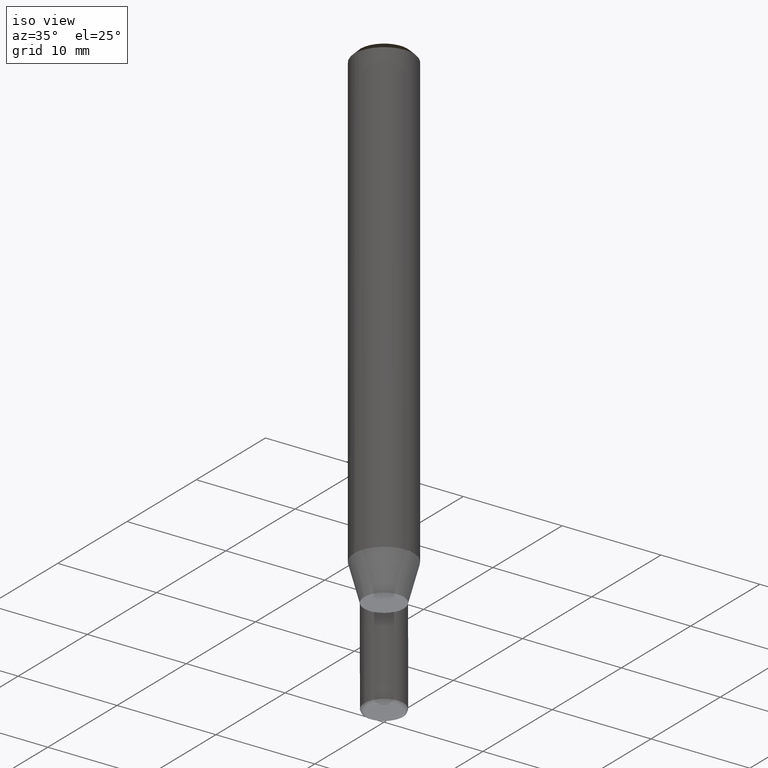
[diagram: clean part render]
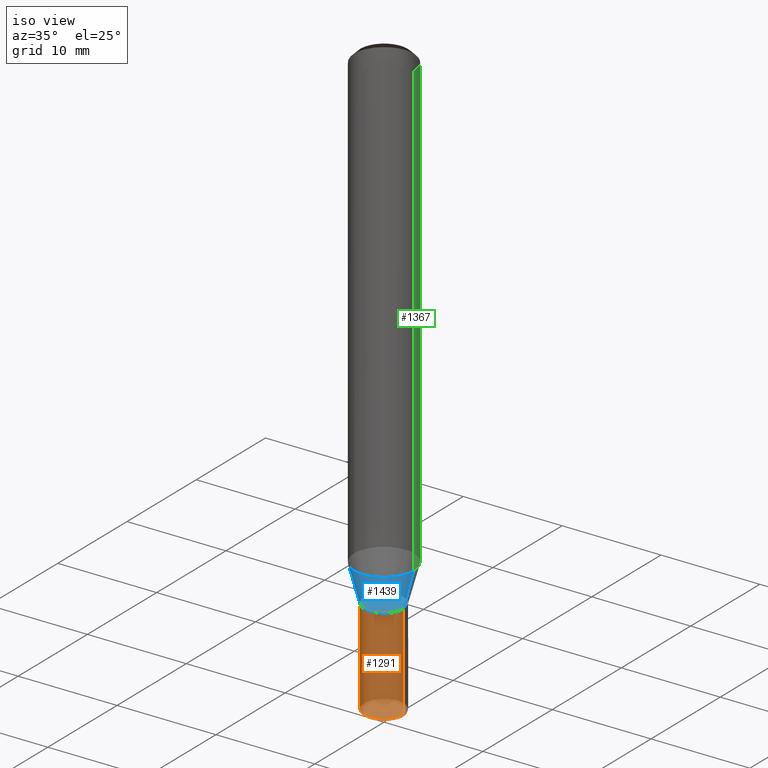
[diagram: same view with three faces highlighted in distinct colors, each labeled with its STEP entity id]
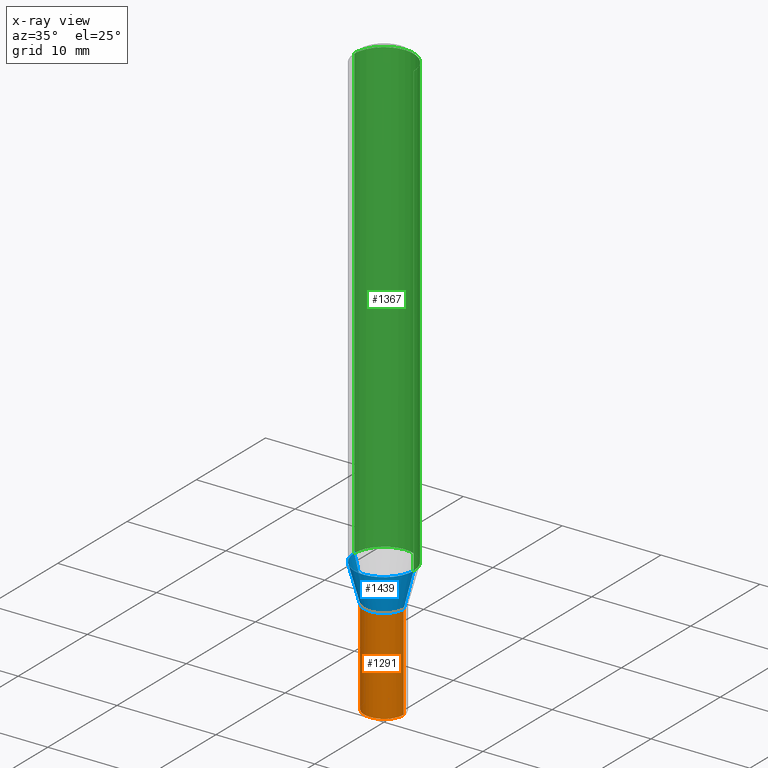
[diagram: x-ray of the same camera — body ghosted, the three highlighted faces saturated]
A machine part, iso view with three faces highlighted in distinct colors.
The next image is the same camera in x-ray (body ghosted, the three faces saturated) — at least one of them is partly hidden behind the body in this view.
Their STEP definitions:

[orange] entity #1291 — the highlighted face is a freeform B-spline surface patch.
#1101=CARTESIAN_POINT('',(2.0,0.0,-13.432050807569));
#1105=CARTESIAN_POINT('',(-2.0,0.0,-13.432050807569));
#1106=CARTESIAN_POINT('',(2.0,0.0,-3.732050807569));
#1110=CARTESIAN_POINT('',(-2.0,0.0,-3.732050807569));
#1124=CARTESIAN_POINT('',(-2.0,-2.0,-13.432050807569));
#1125=CARTESIAN_POINT('',(0.0,-2.0,-13.432050807569));
#1126=CARTESIAN_POINT('',(2.0,-2.0,-13.432050807569));
#1127=CARTESIAN_POINT('',(-2.0,-2.0,-3.732050807569));
#1128=CARTESIAN_POINT('',(0.0,-2.0,-3.732050807569));
#1129=CARTESIAN_POINT('',(2.0,-2.0,-3.732050807569));
#1272=(
BOUNDED_SURFACE()
B_SPLINE_SURFACE(1,2,(
(#1105,#1124,#1125,#1126,#1101),
(#1110,#1127,#1128,#1129,#1106)
), .UNSPECIFIED.,.F.,.F.,.F.)
B_SPLINE_SURFACE_WITH_KNOTS((2,2),(3,2,3),(
0.0,1.0),(
0.0,0.5,1.0), .UNSPECIFIED.)
GEOMETRIC_REPRESENTATION_ITEM()
RATIONAL_B_SPLINE_SURFACE(((1.0,0.707106781187,1.0,0.707106781187,1.0),
(1.0,0.707106781187,1.0,0.707106781187,1.0)
))
REPRESENTATION_ITEM('')
SURFACE()
);
#1273=(
BOUNDED_CURVE()
B_SPLINE_CURVE(1,(#1110,#1105),.UNSPECIFIED.,.F.,.F.)
B_SPLINE_CURVE_WITH_KNOTS((2,2),
(0.0,1.0),.UNSPECIFIED.)
CURVE()
GEOMETRIC_REPRESENTATION_ITEM()
RATIONAL_B_SPLINE_CURVE((1.0,1.0))
REPRESENTATION_ITEM('')
);
#1274=(
BOUNDED_CURVE()
B_SPLINE_CURVE(2,(#1105,#1124,#1125,#1126,#1101),.UNSPECIFIED.,.F.,.F.)
B_SPLINE_CURVE_WITH_KNOTS((3,2,3),
(0.0,0.5,1.0),.UNSPECIFIED.)
CURVE()
GEOMETRIC_REPRESENTATION_ITEM()
RATIONAL_B_SPLINE_CURVE((1.0,0.707106781187,1.0,0.707106781187,1.0))
REPRESENTATION_ITEM('')
);
#1275=(
BOUNDED_CURVE()
B_SPLINE_CURVE(1,(#1101,#1106),.UNSPECIFIED.,.F.,.F.)
B_SPLINE_CURVE_WITH_KNOTS((2,2),
(0.0,1.0),.UNSPECIFIED.)
CURVE()
GEOMETRIC_REPRESENTATION_ITEM()
RATIONAL_B_SPLINE_CURVE((1.0,1.0))
REPRESENTATION_ITEM('')
);
#1276=(
BOUNDED_CURVE()
B_SPLINE_CURVE(2,(#1106,#1129,#1128,#1127,#1110),.UNSPECIFIED.,.F.,.F.)
B_SPLINE_CURVE_WITH_KNOTS((3,2,3),
(0.0,0.5,1.0),.UNSPECIFIED.)
CURVE()
GEOMETRIC_REPRESENTATION_ITEM()
RATIONAL_B_SPLINE_CURVE((1.0,0.707106781187,1.0,0.707106781187,1.0))
REPRESENTATION_ITEM('')
);
#1277=VERTEX_POINT('',#1101);
#1278=VERTEX_POINT('',#1105);
#1279=VERTEX_POINT('',#1106);
#1280=VERTEX_POINT('',#1110);
#1281=EDGE_CURVE('',#1280,#1278,#1273,.T.);
#1282=EDGE_CURVE('',#1278,#1277,#1274,.T.);
#1283=EDGE_CURVE('',#1277,#1279,#1275,.T.);
#1284=EDGE_CURVE('',#1279,#1280,#1276,.T.);
#1285=ORIENTED_EDGE('',*,*,#1281,.T.);
#1286=ORIENTED_EDGE('',*,*,#1282,.T.);
#1287=ORIENTED_EDGE('',*,*,#1283,.T.);
#1288=ORIENTED_EDGE('',*,*,#1284,.T.);
#1289=EDGE_LOOP('',(#1285,#1286,#1287,#1288));
#1290=FACE_OUTER_BOUND('',#1289,.T.);
#1291=ADVANCED_FACE('',(#1290),#1272,.T.);

[blue] entity #1439 — the highlighted face is a freeform B-spline surface patch.
#1106=CARTESIAN_POINT('',(2.0,0.0,-3.732050807569));
#1110=CARTESIAN_POINT('',(-2.0,0.0,-3.732050807569));
#1127=CARTESIAN_POINT('',(-2.0,-2.0,-3.732050807569));
#1128=CARTESIAN_POINT('',(0.0,-2.0,-3.732050807569));
#1129=CARTESIAN_POINT('',(2.0,-2.0,-3.732050807569));
#1130=CARTESIAN_POINT('',(3.0,0.0,0.0));
#1134=CARTESIAN_POINT('',(-3.0,0.0,0.0));
#1146=CARTESIAN_POINT('',(-3.0,-3.0,0.0));
#1147=CARTESIAN_POINT('',(0.0,-3.0,0.0));
#1148=CARTESIAN_POINT('',(3.0,-3.0,0.0));
#1420=(
BOUNDED_SURFACE()
B_SPLINE_SURFACE(1,2,(
(#1110,#1127,#1128,#1129,#1106),
(#1134,#1146,#1147,#1148,#1130)
), .UNSPECIFIED.,.F.,.F.,.F.)
B_SPLINE_SURFACE_WITH_KNOTS((2,2),(3,2,3),(
0.0,1.0),(
0.0,0.5,1.0), .UNSPECIFIED.)
GEOMETRIC_REPRESENTATION_ITEM()
RATIONAL_B_SPLINE_SURFACE(((1.0,0.707106781187,1.0,0.707106781187,1.0),
(1.0,0.707106781187,1.0,0.707106781187,1.0)
))
REPRESENTATION_ITEM('')
SURFACE()
);
#1421=(
BOUNDED_CURVE()
B_SPLINE_CURVE(1,(#1134,#1110),.UNSPECIFIED.,.F.,.F.)
B_SPLINE_CURVE_WITH_KNOTS((2,2),
(0.0,1.0),.UNSPECIFIED.)
CURVE()
GEOMETRIC_REPRESENTATION_ITEM()
RATIONAL_B_SPLINE_CURVE((1.0,1.0))
REPRESENTATION_ITEM('')
);
#1422=(
BOUNDED_CURVE()
B_SPLINE_CURVE(2,(#1110,#1127,#1128,#1129,#1106),.UNSPECIFIED.,.F.,.F.)
B_SPLINE_CURVE_WITH_KNOTS((3,2,3),
(0.0,0.5,1.0),.UNSPECIFIED.)
CURVE()
GEOMETRIC_REPRESENTATION_ITEM()
RATIONAL_B_SPLINE_CURVE((1.0,0.707106781187,1.0,0.707106781187,1.0))
REPRESENTATION_ITEM('')
);
#1423=(
BOUNDED_CURVE()
B_SPLINE_CURVE(1,(#1106,#1130),.UNSPECIFIED.,.F.,.F.)
B_SPLINE_CURVE_WITH_KNOTS((2,2),
(0.0,1.0),.UNSPECIFIED.)
CURVE()
GEOMETRIC_REPRESENTATION_ITEM()
RATIONAL_B_SPLINE_CURVE((1.0,1.0))
REPRESENTATION_ITEM('')
);
#1424=(
BOUNDED_CURVE()
B_SPLINE_CURVE(2,(#1130,#1148,#1147,#1146,#1134),.UNSPECIFIED.,.F.,.F.)
B_SPLINE_CURVE_WITH_KNOTS((3,2,3),
(0.0,0.5,1.0),.UNSPECIFIED.)
CURVE()
GEOMETRIC_REPRESENTATION_ITEM()
RATIONAL_B_SPLINE_CURVE((1.0,0.707106781187,1.0,0.707106781187,1.0))
REPRESENTATION_ITEM('')
);
#1425=VERTEX_POINT('',#1106);
#1426=VERTEX_POINT('',#1110);
#1427=VERTEX_POINT('',#1130);
#1428=VERTEX_POINT('',#1134);
#1429=EDGE_CURVE('',#1428,#1426,#1421,.T.);
#1430=EDGE_CURVE('',#1426,#1425,#1422,.T.);
#1431=EDGE_CURVE('',#1425,#1427,#1423,.T.);
#1432=EDGE_CURVE('',#1427,#1428,#1424,.T.);
#1433=ORIENTED_EDGE('',*,*,#1429,.T.);
#1434=ORIENTED_EDGE('',*,*,#1430,.T.);
#1435=ORIENTED_EDGE('',*,*,#1431,.T.);
#1436=ORIENTED_EDGE('',*,*,#1432,.T.);
#1437=EDGE_LOOP('',(#1433,#1434,#1435,#1436));
#1438=FACE_OUTER_BOUND('',#1437,.T.);
#1439=ADVANCED_FACE('',(#1438),#1420,.T.);

[green] entity #1367 — the highlighted face is a freeform B-spline surface patch.
#1130=CARTESIAN_POINT('',(3.0,0.0,0.0));
#1131=CARTESIAN_POINT('',(3.0,3.0,0.0));
#1132=CARTESIAN_POINT('',(0.0,3.0,0.0));
#1133=CARTESIAN_POINT('',(-3.0,3.0,0.0));
#1134=CARTESIAN_POINT('',(-3.0,0.0,0.0));
#1135=CARTESIAN_POINT('',(3.0,0.0,45.667949192431));
#1136=CARTESIAN_POINT('',(3.0,3.0,45.667949192431));
#1137=CARTESIAN_POINT('',(0.0,3.0,45.667949192431));
#1138=CARTESIAN_POINT('',(-3.0,3.0,45.667949192431));
#1139=CARTESIAN_POINT('',(-3.0,0.0,45.667949192431));
#1348=(
BOUNDED_SURFACE()
B_SPLINE_SURFACE(1,2,(
(#1130,#1131,#1132,#1133,#1134),
(#1135,#1136,#1137,#1138,#1139)
), .UNSPECIFIED.,.F.,.F.,.F.)
B_SPLINE_SURFACE_WITH_KNOTS((2,2),(3,2,3),(
0.0,1.0),(
0.0,0.5,1.0), .UNSPECIFIED.)
GEOMETRIC_REPRESENTATION_ITEM()
RATIONAL_B_SPLINE_SURFACE(((1.0,0.707106781187,1.0,0.707106781187,1.0),
(1.0,0.707106781187,1.0,0.707106781187,1.0)
))
REPRESENTATION_ITEM('')
SURFACE()
);
#1349=(
BOUNDED_CURVE()
B_SPLINE_CURVE(2,(#1135,#1136,#1137,#1138,#1139),.UNSPECIFIED.,.F.,.F.)
B_SPLINE_CURVE_WITH_KNOTS((3,2,3),
(0.0,0.5,1.0),.UNSPECIFIED.)
CURVE()
GEOMETRIC_REPRESENTATION_ITEM()
RATIONAL_B_SPLINE_CURVE((1.0,0.707106781187,1.0,0.707106781187,1.0))
REPRESENTATION_ITEM('')
);
#1350=(
BOUNDED_CURVE()
B_SPLINE_CURVE(1,(#1139,#1134),.UNSPECIFIED.,.F.,.F.)
B_SPLINE_CURVE_WITH_KNOTS((2,2),
(0.0,1.0),.UNSPECIFIED.)
CURVE()
GEOMETRIC_REPRESENTATION_ITEM()
RATIONAL_B_SPLINE_CURVE((1.0,1.0))
REPRESENTATION_ITEM('')
);
#1351=(
BOUNDED_CURVE()
B_SPLINE_CURVE(2,(#1134,#1133,#1132,#1131,#1130),.UNSPECIFIED.,.F.,.F.)
B_SPLINE_CURVE_WITH_KNOTS((3,2,3),
(0.0,0.5,1.0),.UNSPECIFIED.)
CURVE()
GEOMETRIC_REPRESENTATION_ITEM()
RATIONAL_B_SPLINE_CURVE((1.0,0.707106781187,1.0,0.707106781187,1.0))
REPRESENTATION_ITEM('')
);
#1352=(
BOUNDED_CURVE()
B_SPLINE_CURVE(1,(#1130,#1135),.UNSPECIFIED.,.F.,.F.)
B_SPLINE_CURVE_WITH_KNOTS((2,2),
(0.0,1.0),.UNSPECIFIED.)
CURVE()
GEOMETRIC_REPRESENTATION_ITEM()
RATIONAL_B_SPLINE_CURVE((1.0,1.0))
REPRESENTATION_ITEM('')
);
#1353=VERTEX_POINT('',#1130);
#1354=VERTEX_POINT('',#1134);
#1355=VERTEX_POINT('',#1135);
#1356=VERTEX_POINT('',#1139);
#1357=EDGE_CURVE('',#1355,#1356,#1349,.T.);
#1358=EDGE_CURVE('',#1356,#1354,#1350,.T.);
#1359=EDGE_CURVE('',#1354,#1353,#1351,.T.);
#1360=EDGE_CURVE('',#1353,#1355,#1352,.T.);
#1361=ORIENTED_EDGE('',*,*,#1357,.T.);
#1362=ORIENTED_EDGE('',*,*,#1358,.T.);
#1363=ORIENTED_EDGE('',*,*,#1359,.T.);
#1364=ORIENTED_EDGE('',*,*,#1360,.T.);
#1365=EDGE_LOOP('',(#1361,#1362,#1363,#1364));
#1366=FACE_OUTER_BOUND('',#1365,.T.);
#1367=ADVANCED_FACE('',(#1366),#1348,.T.);